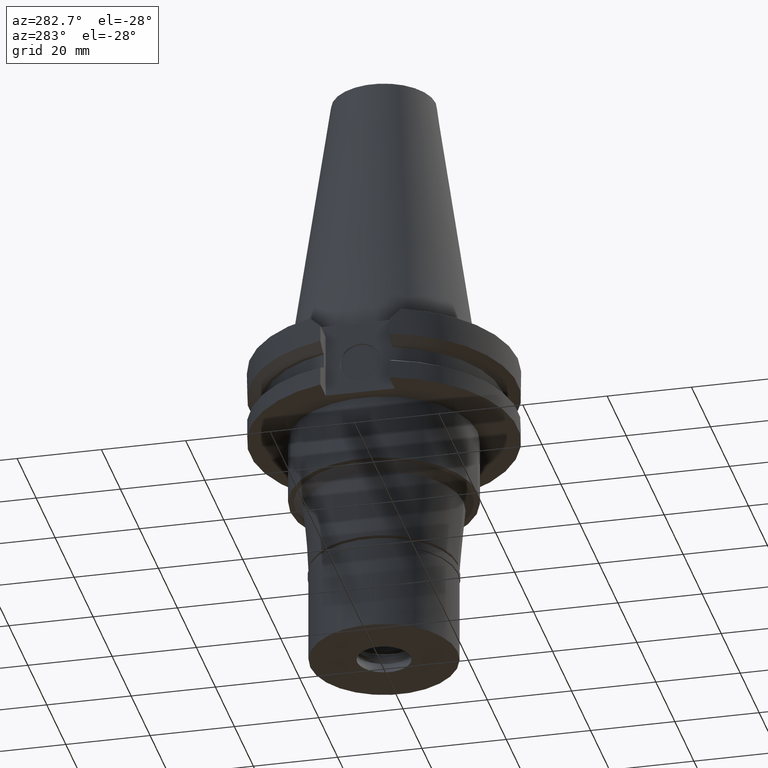
[diagram: clean part render]
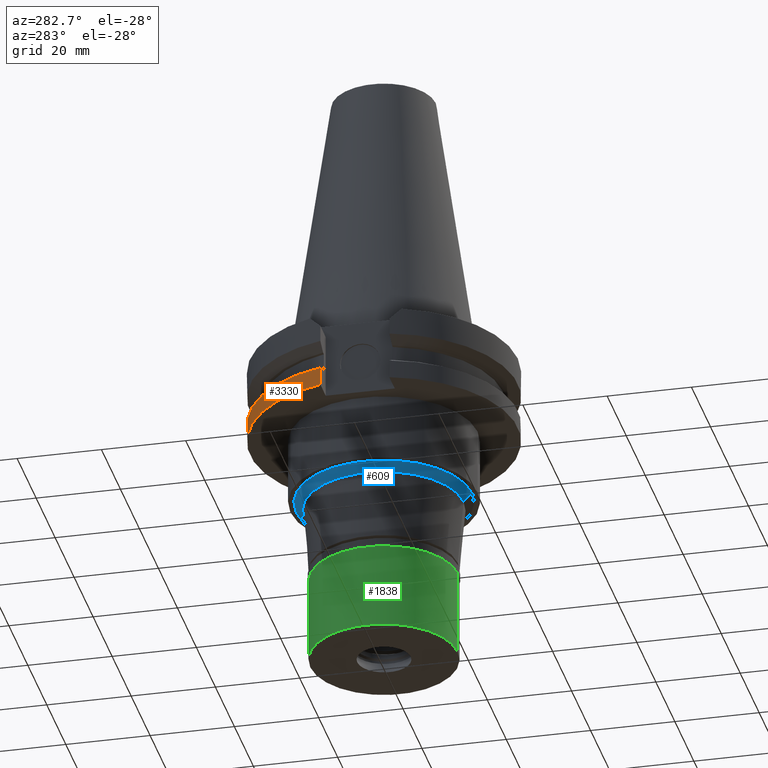
[diagram: same view with three faces highlighted in distinct colors, each labeled with its STEP entity id]
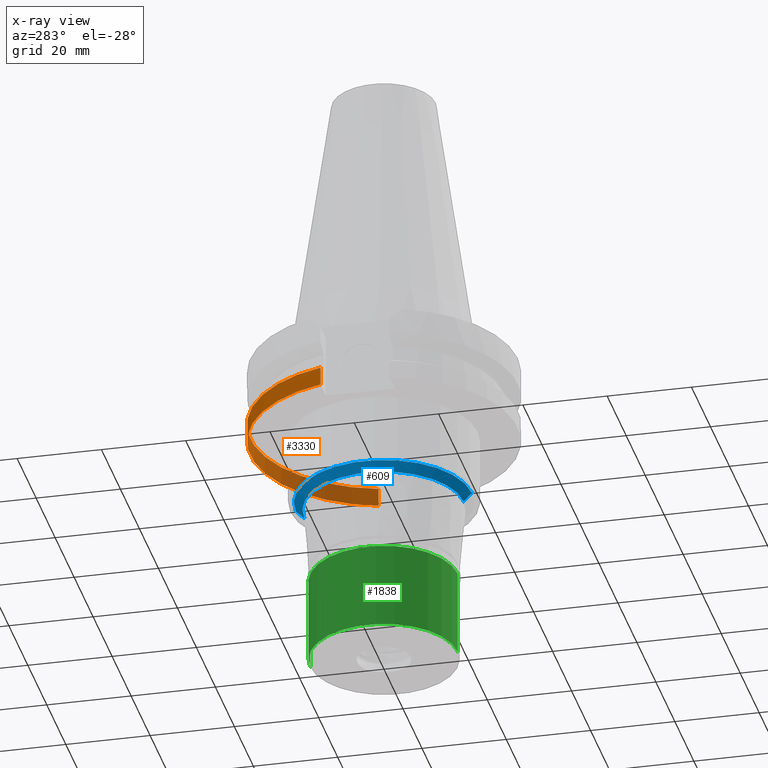
[diagram: x-ray of the same camera — body ghosted, the three highlighted faces saturated]
A machine part, auxiliary view with three faces highlighted in distinct colors.
The next image is the same camera in x-ray (body ghosted, the three faces saturated) — at least one of them is partly hidden behind the body in this view.
Their STEP definitions:

[orange] entity #3330 — the highlighted cylindrical surface (partial cylindrical patch) has radius 31.75 mm, axis along (0, 0, -1).
#30 = VECTOR ( 'NONE', #2926, 1000.000000000000000 ) ;
#106 = VERTEX_POINT ( 'NONE', #2431 ) ;
#166 = DIRECTION ( 'NONE',  ( 0.0000000000000000000, -1.000000000000000000, 0.0000000000000000000 ) ) ;
#291 = LINE ( 'NONE', #1540, #417 ) ;
#417 = VECTOR ( 'NONE', #2340, 999.9999999999998863 ) ;
#500 = EDGE_LOOP ( 'NONE', ( #1514, #1350, #878, #2924 ) ) ;
#505 = DIRECTION ( 'NONE',  ( 0.0000000000000000000, 0.0000000000000000000, 1.000000000000000000 ) ) ;
#646 = AXIS2_PLACEMENT_3D ( 'NONE', #700, #665, #166 ) ;
#665 = DIRECTION ( 'NONE',  ( 0.0000000000000000000, 0.0000000000000000000, -1.000000000000000000 ) ) ;
#686 = CIRCLE ( 'NONE', #2555, 31.74999999999998579 ) ;
#692 = VERTEX_POINT ( 'NONE', #1876 ) ;
#700 = CARTESIAN_POINT ( 'NONE',  ( 0.0000000000000000000, 2.144815787856999694E-14, 75.13750000000000284 ) ) ;
#878 = ORIENTED_EDGE ( 'NONE', *, *, #1774, .F. ) ;
#1056 = CARTESIAN_POINT ( 'NONE',  ( 0.0000000000000000000, 2.144815787856999694E-14, -19.05000000000000071 ) ) ;
#1239 = CARTESIAN_POINT ( 'NONE',  ( -30.67550162588999640, 8.189999999999999503, -19.05000000000000071 ) ) ;
#1350 = ORIENTED_EDGE ( 'NONE', *, *, #2043, .T. ) ;
#1372 = VERTEX_POINT ( 'NONE', #1687 ) ;
#1467 = EDGE_CURVE ( 'NONE', #106, #692, #686, .T. ) ;
#1514 = ORIENTED_EDGE ( 'NONE', *, *, #2129, .F. ) ;
#1540 = CARTESIAN_POINT ( 'NONE',  ( 30.67550162588999640, 8.189999999999999503, -19.05000000000000071 ) ) ;
#1596 = CARTESIAN_POINT ( 'NONE',  ( -30.67550146521000087, 8.190000601840999650, -14.65184202024000015 ) ) ;
#1687 = CARTESIAN_POINT ( 'NONE',  ( 30.67550162588999640, 8.189999999999999503, -19.05000000000000071 ) ) ;
#1774 = EDGE_CURVE ( 'NONE', #106, #2443, #1870, .T. ) ;
#1870 = LINE ( 'NONE', #1596, #30 ) ;
#1876 = CARTESIAN_POINT ( 'NONE',  ( 30.67550165931999828, 8.189999874806000335, -14.65183552330999994 ) ) ;
#1945 = AXIS2_PLACEMENT_3D ( 'NONE', #1056, #505, #2607 ) ;
#1972 = DIRECTION ( 'NONE',  ( 0.0000000000000000000, 0.0000000000000000000, -1.000000000000000000 ) ) ;
#2043 = EDGE_CURVE ( 'NONE', #1372, #2443, #2873, .T. ) ;
#2129 = EDGE_CURVE ( 'NONE', #1372, #692, #291, .T. ) ;
#2340 = DIRECTION ( 'NONE',  ( 7.599981702581995660E-09, -2.846509945254998927E-08, 0.9999999999999996669 ) ) ;
#2431 = CARTESIAN_POINT ( 'NONE',  ( -30.67550162588999640, 8.190000000000997815, -14.65183664206000103 ) ) ;
#2443 = VERTEX_POINT ( 'NONE', #1239 ) ;
#2555 = AXIS2_PLACEMENT_3D ( 'NONE', #3259, #1972, #3015 ) ;
#2556 = FACE_OUTER_BOUND ( 'NONE', #500, .T. ) ;
#2607 = DIRECTION ( 'NONE',  ( 0.0000000000000000000, 1.000000000000000000, 0.0000000000000000000 ) ) ;
#2873 = CIRCLE ( 'NONE', #1945, 31.75000000000000000 ) ;
#2924 = ORIENTED_EDGE ( 'NONE', *, *, #1467, .T. ) ;
#2926 = DIRECTION ( 'NONE',  ( -3.653433952900928576E-08, -1.368392165262971865E-07, -0.9999999999999900080 ) ) ;
#3015 = DIRECTION ( 'NONE',  ( -0.9661575315241073270, 0.2579527559055020958, 0.0000000000000000000 ) ) ;
#3249 = CYLINDRICAL_SURFACE ( 'NONE', #646, 31.75000000000000000 ) ;
#3259 = CARTESIAN_POINT ( 'NONE',  ( 0.0000000000000000000, 1.055021971275999843E-14, -14.65183664206000103 ) ) ;
#3330 = ADVANCED_FACE ( 'NONE', ( #2556 ), #3249, .T. ) ;

[blue] entity #609 — the highlighted conical surface has half-angle 45 deg.
#96 = CARTESIAN_POINT ( 'NONE',  ( 0.0000000000000000000, 0.0000000000000000000, -37.00000000000000000 ) ) ;
#160 = VERTEX_POINT ( 'NONE', #2927 ) ;
#356 = DIRECTION ( 'NONE',  ( 0.0000000000000000000, -1.000000000000000000, 0.0000000000000000000 ) ) ;
#497 = DIRECTION ( 'NONE',  ( 0.0000000000000000000, -1.000000000000000000, 0.0000000000000000000 ) ) ;
#569 = VERTEX_POINT ( 'NONE', #1214 ) ;
#579 = VERTEX_POINT ( 'NONE', #2754 ) ;
#609 = ADVANCED_FACE ( 'NONE', ( #1459 ), #2476, .T. ) ;
#771 = EDGE_CURVE ( 'NONE', #579, #2751, #1309, .T. ) ;
#849 = DIRECTION ( 'NONE',  ( 0.0000000000000000000, 0.0000000000000000000, -1.000000000000000000 ) ) ;
#941 = DIRECTION ( 'NONE',  ( 0.0000000000000000000, 1.000000000000000000, 0.0000000000000000000 ) ) ;
#958 = CARTESIAN_POINT ( 'NONE',  ( 0.0000000000000000000, 0.0000000000000000000, -35.00000000000000000 ) ) ;
#1214 = CARTESIAN_POINT ( 'NONE',  ( 0.0000000000000000000, -18.89106975006000155, -37.00000000000000000 ) ) ;
#1309 = LINE ( 'NONE', #2137, #3221 ) ;
#1459 = FACE_OUTER_BOUND ( 'NONE', #2628, .T. ) ;
#1570 = DIRECTION ( 'NONE',  ( 0.0000000000000000000, -0.7071067811864980568, -0.7071067811865969777 ) ) ;
#1798 = VECTOR ( 'NONE', #3232, 1000.000000000000000 ) ;
#1863 = CARTESIAN_POINT ( 'NONE',  ( 0.0000000000000000000, 18.89106975006000155, -37.00000000000000000 ) ) ;
#1896 = AXIS2_PLACEMENT_3D ( 'NONE', #96, #849, #356 ) ;
#2008 = DIRECTION ( 'NONE',  ( 0.0000000000000000000, 0.0000000000000000000, -1.000000000000000000 ) ) ;
#2013 = CARTESIAN_POINT ( 'NONE',  ( 0.0000000000000000000, -20.89106975006000155, -35.00000000000000000 ) ) ;
#2137 = CARTESIAN_POINT ( 'NONE',  ( 0.0000000000000000000, 20.89106975006000155, -35.00000000000000000 ) ) ;
#2254 = ORIENTED_EDGE ( 'NONE', *, *, #3345, .F. ) ;
#2291 = AXIS2_PLACEMENT_3D ( 'NONE', #958, #2008, #497 ) ;
#2429 = ORIENTED_EDGE ( 'NONE', *, *, #2748, .F. ) ;
#2476 = CONICAL_SURFACE ( 'NONE', #2846, 19.89106975006000155, 0.7853981633972997312 ) ;
#2519 = CARTESIAN_POINT ( 'NONE',  ( 0.0000000000000000000, 0.0000000000000000000, -36.00000000000000000 ) ) ;
#2628 = EDGE_LOOP ( 'NONE', ( #2429, #2254, #3190, #3089 ) ) ;
#2748 = EDGE_CURVE ( 'NONE', #569, #2751, #3299, .T. ) ;
#2751 = VERTEX_POINT ( 'NONE', #1863 ) ;
#2754 = CARTESIAN_POINT ( 'NONE',  ( 0.0000000000000000000, 20.89106975006000155, -35.00000000000000000 ) ) ;
#2846 = AXIS2_PLACEMENT_3D ( 'NONE', #2519, #3275, #941 ) ;
#2927 = CARTESIAN_POINT ( 'NONE',  ( 0.0000000000000000000, -20.89106975006000155, -35.00000000000000000 ) ) ;
#3005 = LINE ( 'NONE', #2013, #1798 ) ;
#3038 = EDGE_CURVE ( 'NONE', #160, #579, #3141, .T. ) ;
#3089 = ORIENTED_EDGE ( 'NONE', *, *, #771, .T. ) ;
#3141 = CIRCLE ( 'NONE', #2291, 20.89106975006000155 ) ;
#3190 = ORIENTED_EDGE ( 'NONE', *, *, #3038, .T. ) ;
#3221 = VECTOR ( 'NONE', #1570, 1000.000000000000000 ) ;
#3232 = DIRECTION ( 'NONE',  ( 0.0000000000000000000, 0.7071067811864980568, -0.7071067811865969777 ) ) ;
#3275 = DIRECTION ( 'NONE',  ( 0.0000000000000000000, 0.0000000000000000000, 1.000000000000000000 ) ) ;
#3299 = CIRCLE ( 'NONE', #1896, 18.89106975006000155 ) ;
#3345 = EDGE_CURVE ( 'NONE', #160, #569, #3005, .T. ) ;

[green] entity #1838 — the highlighted cylindrical surface (partial cylindrical patch) has radius 17.5 mm, axis along (0, 0, -1).
#42 = CARTESIAN_POINT ( 'NONE',  ( 0.0000000000000000000, -17.50000000000000000, -2.000000000000000000 ) ) ;
#69 = ORIENTED_EDGE ( 'NONE', *, *, #3020, .T. ) ;
#107 = CYLINDRICAL_SURFACE ( 'NONE', #904, 17.50000000000000000 ) ;
#219 = DIRECTION ( 'NONE',  ( 0.0000000000000000000, 0.0000000000000000000, -1.000000000000000000 ) ) ;
#238 = VERTEX_POINT ( 'NONE', #42 ) ;
#301 = VERTEX_POINT ( 'NONE', #671 ) ;
#612 = CIRCLE ( 'NONE', #2139, 17.50000000000000000 ) ;
#627 = EDGE_CURVE ( 'NONE', #301, #1266, #1483, .T. ) ;
#630 = DIRECTION ( 'NONE',  ( 0.0000000000000000000, -1.000000000000000000, 0.0000000000000000000 ) ) ;
#671 = CARTESIAN_POINT ( 'NONE',  ( 0.0000000000000000000, 17.50000000000000000, -22.50000000000000000 ) ) ;
#804 = VECTOR ( 'NONE', #3118, 1000.000000000000000 ) ;
#827 = VERTEX_POINT ( 'NONE', #2935 ) ;
#872 = ORIENTED_EDGE ( 'NONE', *, *, #2027, .F. ) ;
#904 = AXIS2_PLACEMENT_3D ( 'NONE', #1783, #219, #2813 ) ;
#944 = DIRECTION ( 'NONE',  ( 0.0000000000000000000, 0.0000000000000000000, -1.000000000000000000 ) ) ;
#1203 = EDGE_LOOP ( 'NONE', ( #2616, #872, #2548, #69 ) ) ;
#1216 = LINE ( 'NONE', #3279, #2933 ) ;
#1246 = EDGE_CURVE ( 'NONE', #238, #827, #612, .T. ) ;
#1266 = VERTEX_POINT ( 'NONE', #1374 ) ;
#1374 = CARTESIAN_POINT ( 'NONE',  ( 0.0000000000000000000, -17.50000000000000000, -22.50000000000000000 ) ) ;
#1483 = CIRCLE ( 'NONE', #3327, 17.50000000000000000 ) ;
#1555 = LINE ( 'NONE', #3156, #804 ) ;
#1778 = DIRECTION ( 'NONE',  ( 0.0000000000000000000, 1.000000000000000000, 0.0000000000000000000 ) ) ;
#1783 = CARTESIAN_POINT ( 'NONE',  ( 0.0000000000000000000, 0.0000000000000000000, 0.0000000000000000000 ) ) ;
#1838 = ADVANCED_FACE ( 'NONE', ( #3317 ), #107, .T. ) ;
#1984 = CARTESIAN_POINT ( 'NONE',  ( 0.0000000000000000000, 0.0000000000000000000, -22.50000000000000000 ) ) ;
#1994 = DIRECTION ( 'NONE',  ( 0.0000000000000000000, 0.0000000000000000000, 1.000000000000000000 ) ) ;
#2027 = EDGE_CURVE ( 'NONE', #238, #1266, #1555, .T. ) ;
#2139 = AXIS2_PLACEMENT_3D ( 'NONE', #2969, #3198, #630 ) ;
#2548 = ORIENTED_EDGE ( 'NONE', *, *, #1246, .T. ) ;
#2616 = ORIENTED_EDGE ( 'NONE', *, *, #627, .T. ) ;
#2813 = DIRECTION ( 'NONE',  ( 0.0000000000000000000, -1.000000000000000000, 0.0000000000000000000 ) ) ;
#2933 = VECTOR ( 'NONE', #944, 1000.000000000000000 ) ;
#2935 = CARTESIAN_POINT ( 'NONE',  ( 0.0000000000000000000, 17.50000000000000000, -2.000000000000000000 ) ) ;
#2969 = CARTESIAN_POINT ( 'NONE',  ( 0.0000000000000000000, 0.0000000000000000000, -2.000000000000000000 ) ) ;
#3020 = EDGE_CURVE ( 'NONE', #827, #301, #1216, .T. ) ;
#3118 = DIRECTION ( 'NONE',  ( 0.0000000000000000000, 0.0000000000000000000, -1.000000000000000000 ) ) ;
#3156 = CARTESIAN_POINT ( 'NONE',  ( 0.0000000000000000000, -17.50000000000000000, -2.000000000000000000 ) ) ;
#3198 = DIRECTION ( 'NONE',  ( 0.0000000000000000000, 0.0000000000000000000, -1.000000000000000000 ) ) ;
#3279 = CARTESIAN_POINT ( 'NONE',  ( 0.0000000000000000000, 17.50000000000000000, -2.000000000000000000 ) ) ;
#3317 = FACE_OUTER_BOUND ( 'NONE', #1203, .T. ) ;
#3327 = AXIS2_PLACEMENT_3D ( 'NONE', #1984, #1994, #1778 ) ;